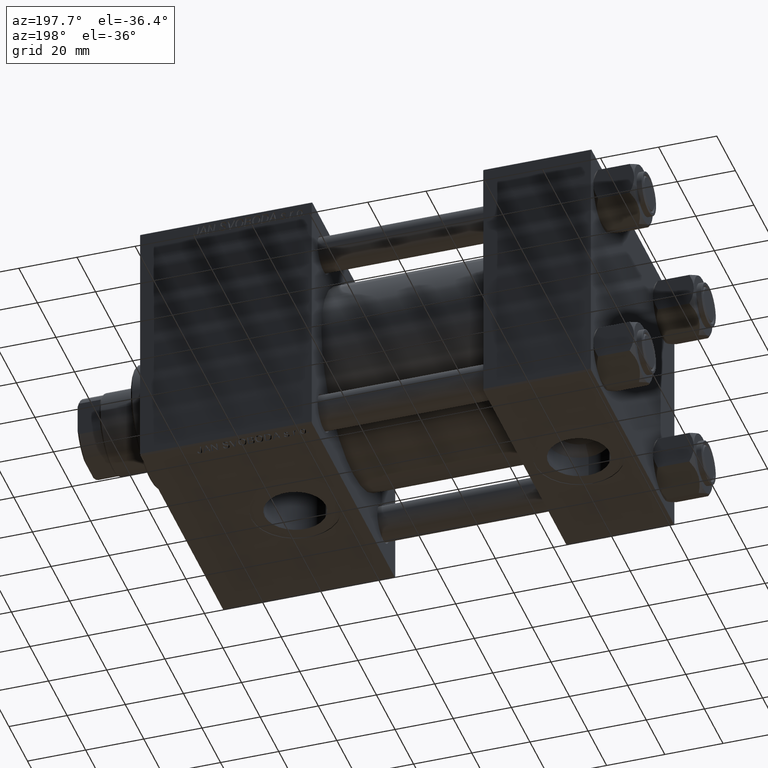
[diagram: clean part render]
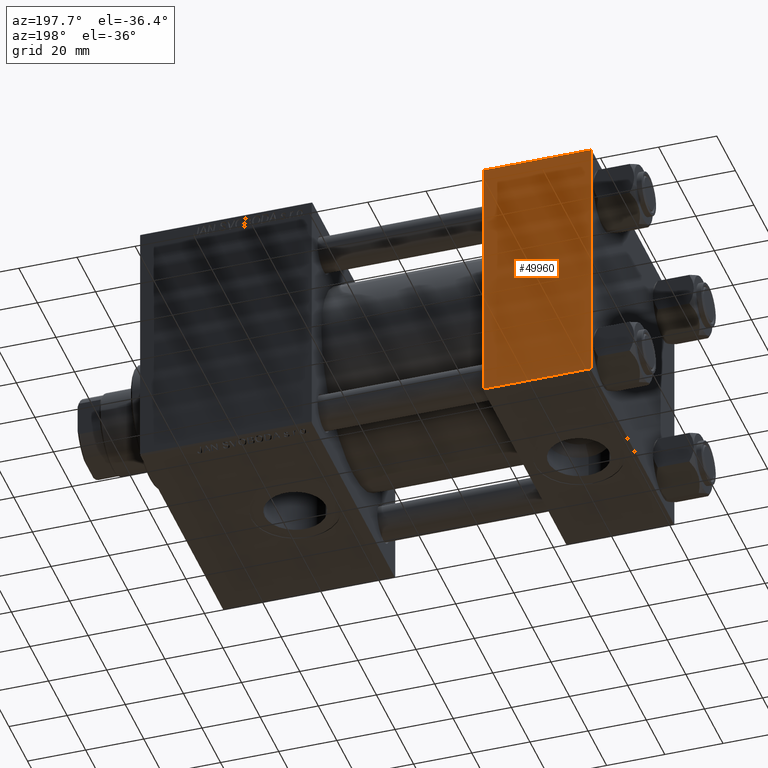
[diagram: same view with one face highlighted and labeled with its STEP entity id]
A machine part, auxiliary view. The second image highlights one B-rep face of the part: STEP entity #49960.
In plain terms, the highlighted planar face has unit normal (0, 1, 0).
Its self-contained STEP definition (entity closure, byte-faithful):
#1120 = LINE ( 'NONE', #44518, #13096 ) ;
#3476 = DIRECTION ( 'NONE',  ( 1.000000000000000000, 0.000000000000000000, 0.000000000000000000 ) ) ;
#5805 = DIRECTION ( 'NONE',  ( 0.000000000000000000, 0.000000000000000000, -1.000000000000000000 ) ) ;
#7549 = LINE ( 'NONE', #19469, #16461 ) ;
#9730 = CARTESIAN_POINT ( 'NONE',  ( 37.00000000000000000, 44.99999999999998579, 45.00000000000001421 ) ) ;
#11305 = DIRECTION ( 'NONE',  ( -1.000000000000000000, 0.000000000000000000, 0.000000000000000000 ) ) ;
#12910 = VERTEX_POINT ( 'NONE', #45750 ) ;
#12915 = VERTEX_POINT ( 'NONE', #31026 ) ;
#13096 = VECTOR ( 'NONE', #43773, 1000.000000000000000 ) ;
#14959 = DIRECTION ( 'NONE',  ( 0.000000000000000000, -0.000000000000000000, 1.000000000000000000 ) ) ;
#15559 = EDGE_CURVE ( 'NONE', #30476, #12910, #7549, .T. ) ;
#16171 = ORIENTED_EDGE ( 'NONE', *, *, #19452, .T. ) ;
#16461 = VECTOR ( 'NONE', #3476, 1000.000000000000000 ) ;
#17418 = AXIS2_PLACEMENT_3D ( 'NONE', #9730, #41874, #14959 ) ;
#18215 = ORIENTED_EDGE ( 'NONE', *, *, #15559, .T. ) ;
#18881 = CARTESIAN_POINT ( 'NONE',  ( 0.000000000000000000, 44.99999999999998579, 44.50000000000001421 ) ) ;
#19399 = CARTESIAN_POINT ( 'NONE',  ( 0.000000000000000000, 44.99999999999998579, -44.49999999999995737 ) ) ;
#19452 = EDGE_CURVE ( 'NONE', #12910, #12915, #32726, .T. ) ;
#19469 = CARTESIAN_POINT ( 'NONE',  ( 37.00000000000000000, 44.99999999999998579, 44.50000000000001421 ) ) ;
#22794 = ORIENTED_EDGE ( 'NONE', *, *, #37182, .F. ) ;
#22912 = VERTEX_POINT ( 'NONE', #19399 ) ;
#25050 = EDGE_CURVE ( 'NONE', #12915, #22912, #38443, .T. ) ;
#26400 = PLANE ( 'NONE',  #17418 ) ;
#30476 = VERTEX_POINT ( 'NONE', #18881 ) ;
#31026 = CARTESIAN_POINT ( 'NONE',  ( 37.00000000000000000, 44.99999999999998579, -44.49999999999995737 ) ) ;
#32726 = LINE ( 'NONE', #40575, #45774 ) ;
#32828 = FACE_OUTER_BOUND ( 'NONE', #39329, .T. ) ;
#35242 = ORIENTED_EDGE ( 'NONE', *, *, #25050, .T. ) ;
#37182 = EDGE_CURVE ( 'NONE', #30476, #22912, #1120, .T. ) ;
#38443 = LINE ( 'NONE', #49892, #46650 ) ;
#39329 = EDGE_LOOP ( 'NONE', ( #16171, #35242, #22794, #18215 ) ) ;
#40575 = CARTESIAN_POINT ( 'NONE',  ( 37.00000000000000000, 44.99999999999998579, 45.00000000000001421 ) ) ;
#41874 = DIRECTION ( 'NONE',  ( -0.000000000000000000, 1.000000000000000000, 0.000000000000000000 ) ) ;
#43773 = DIRECTION ( 'NONE',  ( 0.000000000000000000, 0.000000000000000000, -1.000000000000000000 ) ) ;
#44518 = CARTESIAN_POINT ( 'NONE',  ( 0.000000000000000000, 44.99999999999998579, 45.00000000000001421 ) ) ;
#45750 = CARTESIAN_POINT ( 'NONE',  ( 37.00000000000000000, 44.99999999999998579, 44.50000000000001421 ) ) ;
#45774 = VECTOR ( 'NONE', #5805, 1000.000000000000000 ) ;
#46650 = VECTOR ( 'NONE', #11305, 1000.000000000000000 ) ;
#49892 = CARTESIAN_POINT ( 'NONE',  ( 37.00000000000000000, 44.99999999999998579, -44.49999999999998579 ) ) ;
#49960 = ADVANCED_FACE ( 'NONE', ( #32828 ), #26400, .T. ) ;